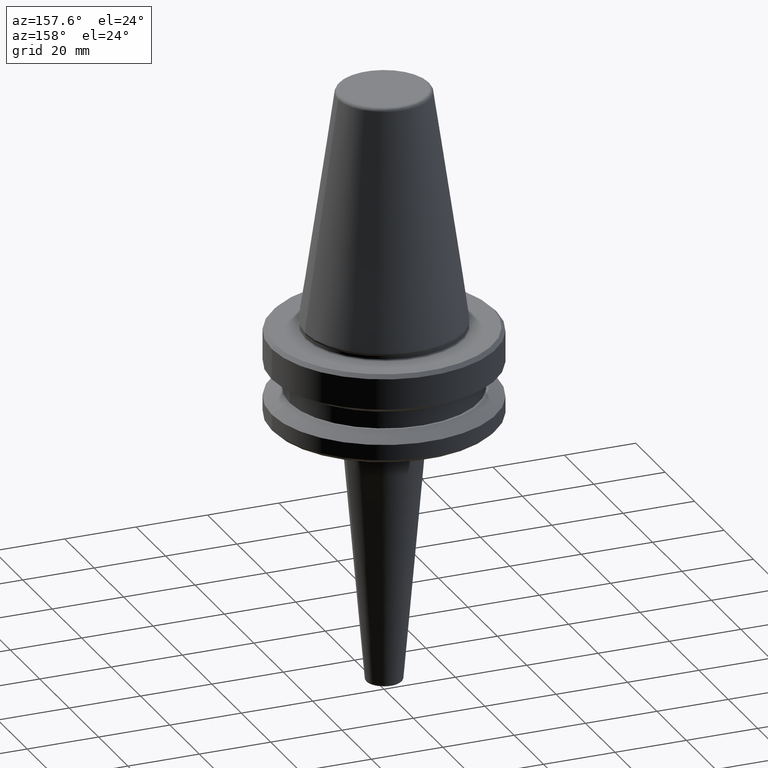
[diagram: clean part render]
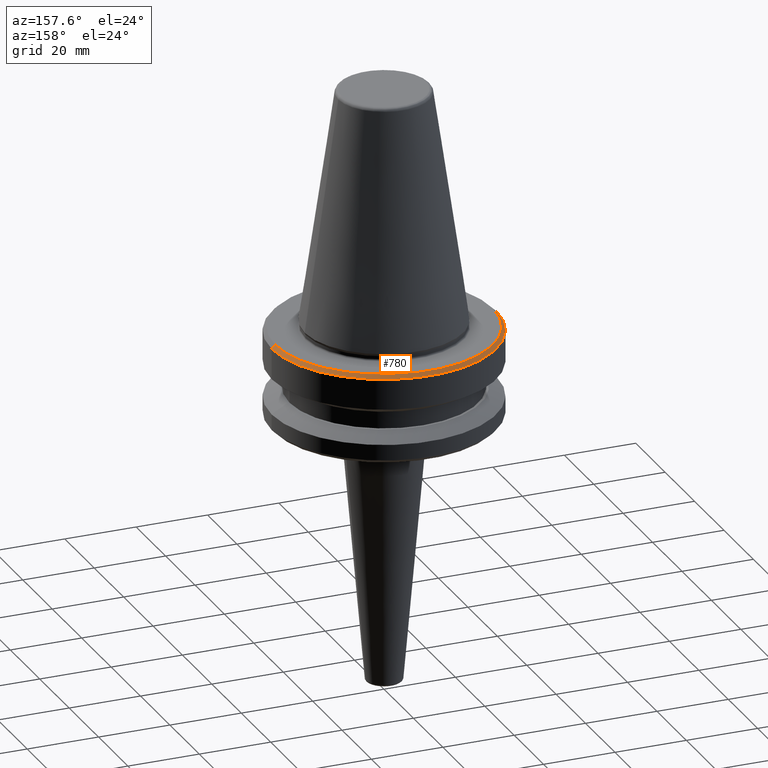
[diagram: same view with one face highlighted and labeled with its STEP entity id]
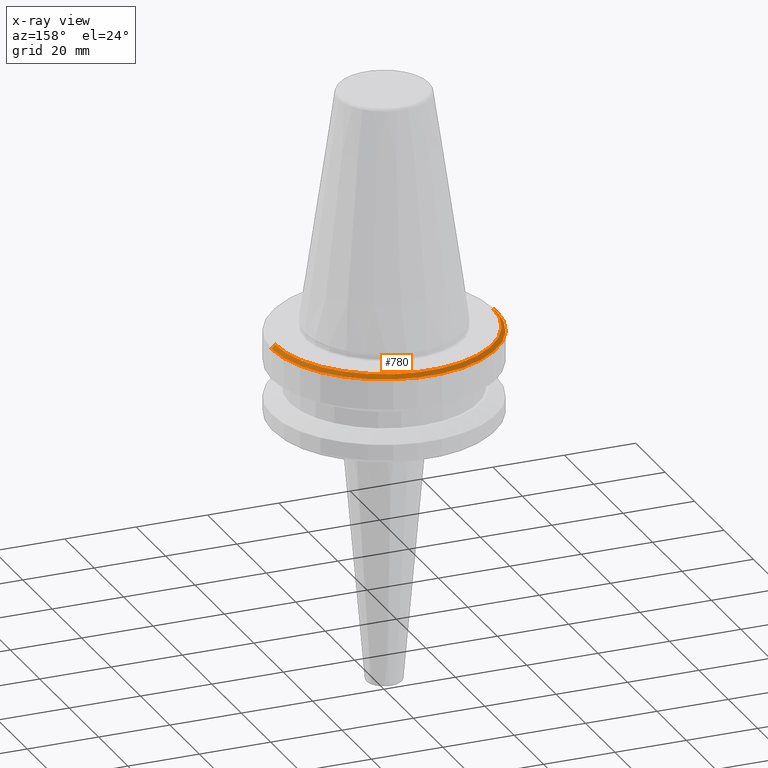
[diagram: x-ray of the same camera — body ghosted, the highlighted face saturated]
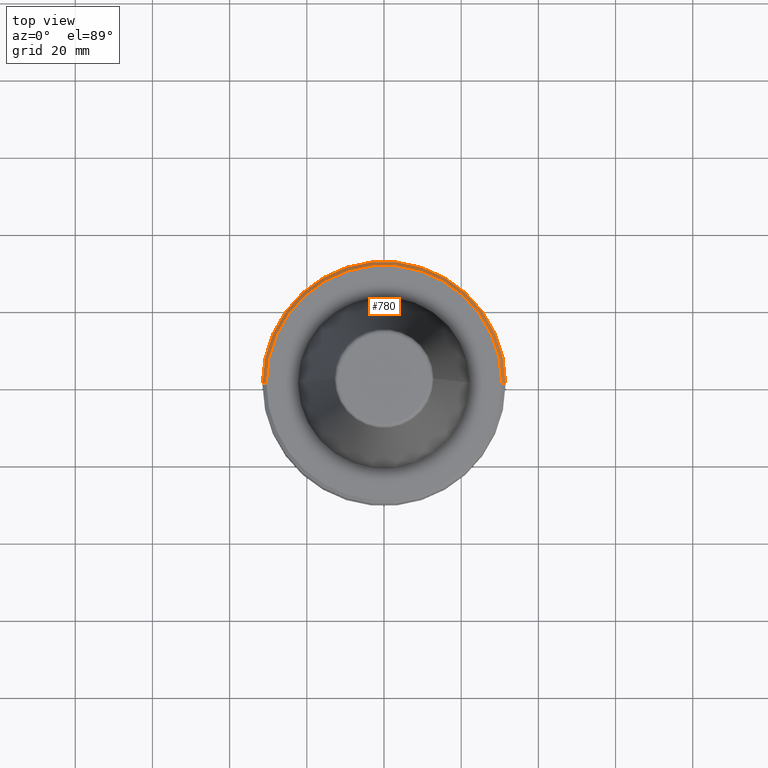
[diagram: same view with one face highlighted and labeled with its STEP entity id]
A machine part, auxiliary view. The second image highlights one B-rep face of the part: STEP entity #780.
The next image is the same camera in x-ray: the body ghosted, the highlighted face saturated — about 0% of this face is hidden behind the body in this view.
A second angle (top view) of the same face is appended — the face is thin or edge-on in the first view.
In plain terms, the highlighted conical surface has half-angle 45 deg.
Its self-contained STEP definition (entity closure, byte-faithful):
#5 = DIRECTION ( 'NONE',  ( -0.7071067811865474600, 0.0000000000000000000, -0.7071067811865475700 ) ) ;
#69 = DIRECTION ( 'NONE',  ( 0.0000000000000000000, 0.0000000000000000000, -1.000000000000000000 ) ) ;
#91 = CIRCLE ( 'NONE', #161, 31.50000000000008500 ) ;
#119 = AXIS2_PLACEMENT_3D ( 'NONE', #312, #69, #869 ) ;
#140 = CARTESIAN_POINT ( 'NONE',  ( -30.49999999999997200, 0.0000000000000000000, -67.40000000000034700 ) ) ;
#143 = DIRECTION ( 'NONE',  ( 0.7071067811865474600, 8.659560562354931600E-017, -0.7071067811865475700 ) ) ;
#161 = AXIS2_PLACEMENT_3D ( 'NONE', #662, #187, #741 ) ;
#187 = DIRECTION ( 'NONE',  ( -0.0000000000000000000, -0.0000000000000000000, 1.000000000000000000 ) ) ;
#211 = EDGE_CURVE ( 'NONE', #837, #325, #91, .T. ) ;
#216 = CARTESIAN_POINT ( 'NONE',  ( 30.49999999999997200, 3.735172737399423600E-015, -67.40000000000034700 ) ) ;
#242 = CARTESIAN_POINT ( 'NONE',  ( 30.49999999999997200, 3.796405077356798300E-015, -67.40000000000034700 ) ) ;
#293 = EDGE_LOOP ( 'NONE', ( #588, #410, #573, #493 ) ) ;
#312 = CARTESIAN_POINT ( 'NONE',  ( 0.0000000000000000000, 0.0000000000000000000, -67.40000000000034700 ) ) ;
#325 = VERTEX_POINT ( 'NONE', #878 ) ;
#338 = LINE ( 'NONE', #216, #846 ) ;
#381 = CARTESIAN_POINT ( 'NONE',  ( 0.0000000000000000000, 0.0000000000000000000, -67.40000000000034700 ) ) ;
#410 = ORIENTED_EDGE ( 'NONE', *, *, #949, .T. ) ;
#413 = FACE_OUTER_BOUND ( 'NONE', #293, .T. ) ;
#431 = VERTEX_POINT ( 'NONE', #242 ) ;
#456 = DIRECTION ( 'NONE',  ( 1.000000000000000000, 0.0000000000000000000, 0.0000000000000000000 ) ) ;
#488 = CARTESIAN_POINT ( 'NONE',  ( -30.49999999999997200, 0.0000000000000000000, -67.40000000000034700 ) ) ;
#493 = ORIENTED_EDGE ( 'NONE', *, *, #605, .F. ) ;
#500 = AXIS2_PLACEMENT_3D ( 'NONE', #381, #968, #456 ) ;
#537 = VECTOR ( 'NONE', #5, 1000.000000000000000 ) ;
#573 = ORIENTED_EDGE ( 'NONE', *, *, #211, .T. ) ;
#581 = CARTESIAN_POINT ( 'NONE',  ( 31.50000000000008500, 0.0000000000000000000, -68.40000000000046000 ) ) ;
#582 = CONICAL_SURFACE ( 'NONE', #119, 30.49999999999997200, 0.7853981633974482800 ) ;
#588 = ORIENTED_EDGE ( 'NONE', *, *, #958, .F. ) ;
#605 = EDGE_CURVE ( 'NONE', #939, #325, #993, .T. ) ;
#651 = CIRCLE ( 'NONE', #500, 30.49999999999997200 ) ;
#662 = CARTESIAN_POINT ( 'NONE',  ( 0.0000000000000000000, 0.0000000000000000000, -68.40000000000046000 ) ) ;
#741 = DIRECTION ( 'NONE',  ( 1.000000000000000000, 0.0000000000000000000, 0.0000000000000000000 ) ) ;
#780 = ADVANCED_FACE ( 'NONE', ( #413 ), #582, .T. ) ;
#837 = VERTEX_POINT ( 'NONE', #581 ) ;
#846 = VECTOR ( 'NONE', #143, 1000.000000000000000 ) ;
#869 = DIRECTION ( 'NONE',  ( -1.000000000000000000, 0.0000000000000000000, 0.0000000000000000000 ) ) ;
#878 = CARTESIAN_POINT ( 'NONE',  ( -31.50000000000008500, 3.857637417314172900E-015, -68.40000000000046000 ) ) ;
#939 = VERTEX_POINT ( 'NONE', #140 ) ;
#949 = EDGE_CURVE ( 'NONE', #431, #837, #338, .T. ) ;
#958 = EDGE_CURVE ( 'NONE', #431, #939, #651, .T. ) ;
#968 = DIRECTION ( 'NONE',  ( -0.0000000000000000000, -0.0000000000000000000, 1.000000000000000000 ) ) ;
#993 = LINE ( 'NONE', #488, #537 ) ;